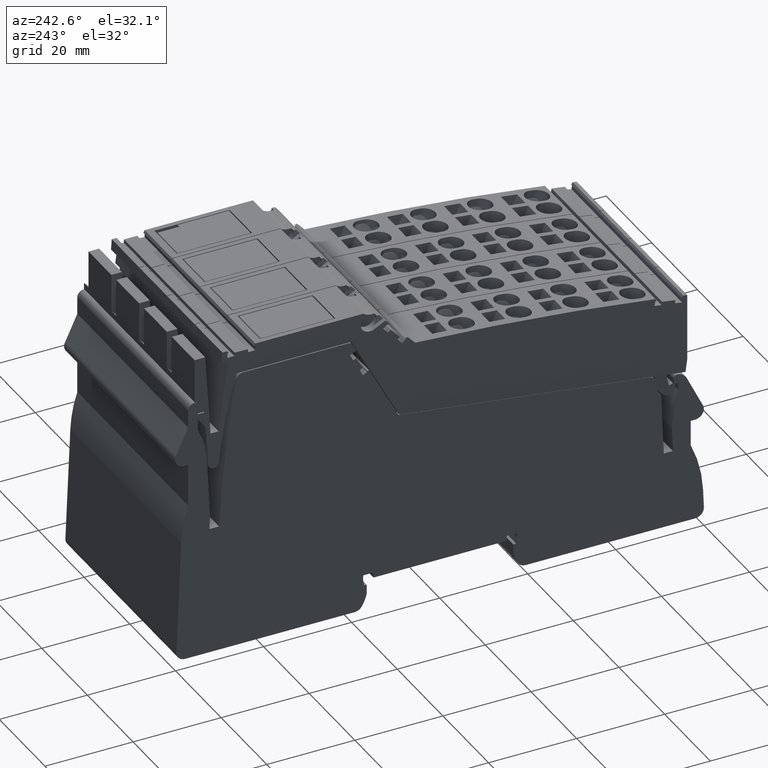
[diagram: clean part render]
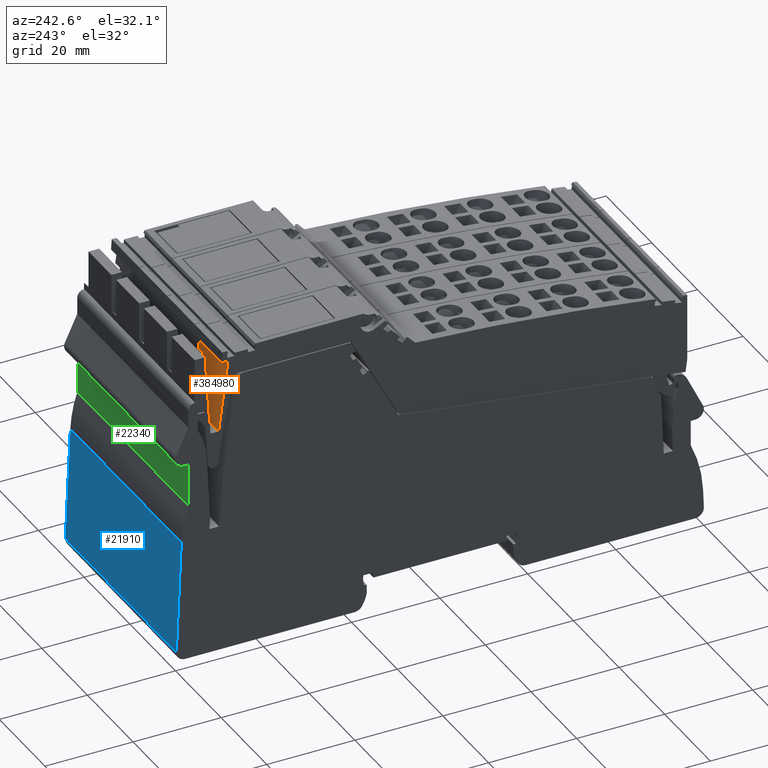
[diagram: same view with three faces highlighted in distinct colors, each labeled with its STEP entity id]
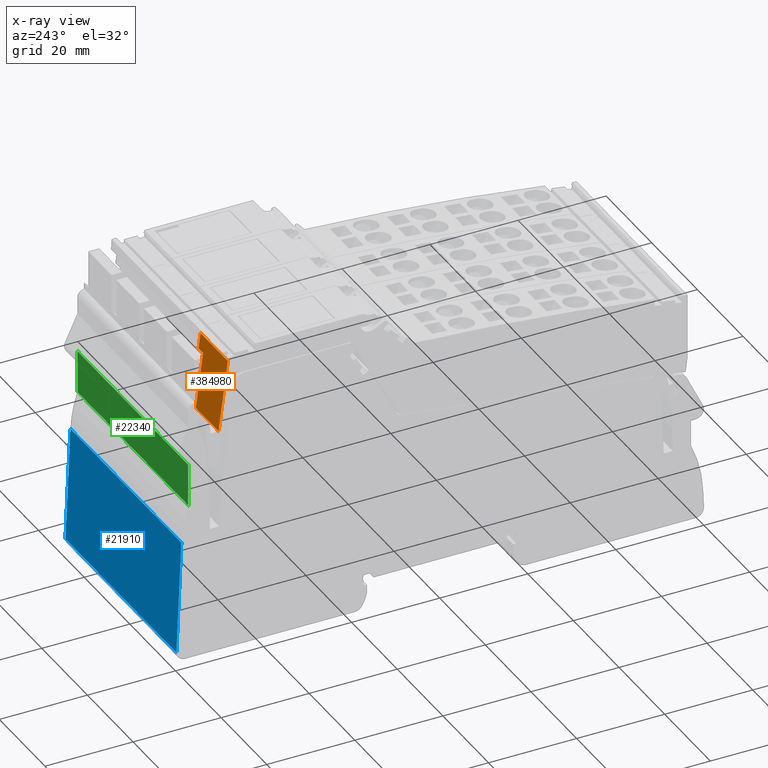
[diagram: x-ray of the same camera — body ghosted, the three highlighted faces saturated]
A machine part, auxiliary view with three faces highlighted in distinct colors.
The next image is the same camera in x-ray (body ghosted, the three faces saturated) — at least one of them is partly hidden behind the body in this view.
Their STEP definitions:

[orange] entity #384980 — the highlighted planar face has unit normal (-0, -0.9914, -0.1305).
#224320=CARTESIAN_POINT('',(117.512908656979,82.0866197234256,-35.425));
#224330=VERTEX_POINT('',#224320);
#224360=CARTESIAN_POINT('',(128.319817162075,-2.8421709430404E-14,
-35.425));
#224370=DIRECTION('',(0.130526192220052,-0.99144486137381,0.));
#224380=VECTOR('',#224370,1.);
#224390=LINE('',#224360,#224380);
#224400=CARTESIAN_POINT('',(117.973692398535,78.5866197234246,-35.425));
#224410=VERTEX_POINT('',#224400);
#224420=EDGE_CURVE('',#224330,#224410,#224390,.T.);
#230610=CARTESIAN_POINT('',(119.632513868136,65.9866197234248,-47.425));
#230620=VERTEX_POINT('',#230610);
#230650=CARTESIAN_POINT('',(128.319817162075,-2.8421709430404E-14,
-47.425));
#230660=DIRECTION('',(0.130526192220052,-0.99144486137381,0.));
#230670=VECTOR('',#230660,1.);
#230680=LINE('',#230650,#230670);
#230690=CARTESIAN_POINT('',(117.512908656979,82.0866197234256,-47.425));
#230700=VERTEX_POINT('',#230690);
#230710=EDGE_CURVE('',#230700,#230620,#230680,.T.);
#236220=CARTESIAN_POINT('',(117.512908656979,82.0866197234256,0.));
#236230=DIRECTION('',(-8.85927774418128E-33,0.,1.));
#236240=VECTOR('',#236230,1.);
#236250=LINE('',#236220,#236240);
#236260=EDGE_CURVE('',#230700,#224330,#236250,.T.);
#236490=CARTESIAN_POINT('',(119.632513868136,65.9866197234249,-37.425));
#236500=VERTEX_POINT('',#236490);
#236550=CARTESIAN_POINT('',(119.632513868136,65.9866197234248,0.));
#236560=DIRECTION('',(-8.85927774418128E-33,6.90131940202395E-49,1.));
#236570=VECTOR('',#236560,1.);
#236580=LINE('',#236550,#236570);
#236590=EDGE_CURVE('',#230620,#236500,#236580,.T.);
#376730=CARTESIAN_POINT('',(117.973692398535,78.5866197234246,-37.425));
#376740=VERTEX_POINT('',#376730);
#376770=CARTESIAN_POINT('',(118.59066468609,73.900249932795,-37.425));
#376780=DIRECTION('',(-0.130526192220052,0.99144486137381,0.));
#376790=VECTOR('',#376780,1.);
#376800=LINE('',#376770,#376790);
#376810=EDGE_CURVE('',#236500,#376740,#376800,.T.);
#380340=CARTESIAN_POINT('',(117.973692398535,78.5866197234246,0.));
#380350=DIRECTION('',(8.85927774418128E-33,0.,-1.));
#380360=VECTOR('',#380350,1.);
#380370=LINE('',#380340,#380360);
#380380=EDGE_CURVE('',#224410,#376740,#380370,.T.);
#384850=CARTESIAN_POINT('',(117.512908656979,82.0866197234256,-35.425));
#384860=DIRECTION('',(-0.99144486137381,-0.130526192220052,
-8.7834853949519E-33));
#384870=DIRECTION('',(-0.130526192220052,0.99144486137381,0.));
#384880=AXIS2_PLACEMENT_3D('',#384850,#384860,#384870);
#384890=PLANE('',#384880);
#384900=ORIENTED_EDGE('',*,*,#376810,.F.);
#384910=ORIENTED_EDGE('',*,*,#380380,.T.);
#384920=ORIENTED_EDGE('',*,*,#224420,.T.);
#384930=ORIENTED_EDGE('',*,*,#236260,.T.);
#384940=ORIENTED_EDGE('',*,*,#230710,.F.);
#384950=ORIENTED_EDGE('',*,*,#236590,.F.);
#384960=EDGE_LOOP('',(#384950,#384940,#384930,#384920,#384910,#384900));
#384970=FACE_OUTER_BOUND('',#384960,.T.);
#384980=ADVANCED_FACE('',(#384970),#384890,.F.);

[blue] entity #21910 — the highlighted planar face has unit normal (0, -0.999, -0.0436).
#1290=CARTESIAN_POINT('',(295.310352033684,-35.0513494374696,36.45));
#1300=VERTEX_POINT('',#1290);
#1330=CARTESIAN_POINT('',(295.376265619679,-36.5610187575391,36.45));
#1340=DIRECTION('',(-0.0436193873653252,0.999048221581858,0.));
#1350=VECTOR('',#1340,1.);
#1360=LINE('',#1330,#1350);
#1370=CARTESIAN_POINT('',(296.437489395879,-60.8670393220634,36.45));
#1380=VERTEX_POINT('',#1370);
#1390=EDGE_CURVE('',#1380,#1300,#1360,.T.);
#9360=CARTESIAN_POINT('',(296.437489395879,-60.8670393220635,-12.15));
#9370=VERTEX_POINT('',#9360);
#9400=CARTESIAN_POINT('',(295.376265619679,-36.5610187575391,-12.15));
#9410=DIRECTION('',(-0.0436193873653252,0.999048221581858,0.));
#9420=VECTOR('',#9410,1.);
#9430=LINE('',#9400,#9420);
#9440=CARTESIAN_POINT('',(295.310352033684,-35.0513494374696,-12.15));
#9450=VERTEX_POINT('',#9440);
#9460=EDGE_CURVE('',#9370,#9450,#9430,.T.);
#21590=CARTESIAN_POINT('',(296.437489395879,-60.8670393220633,
6.14999999999999));
#21600=DIRECTION('',(0.,0.,1.));
#21610=VECTOR('',#21600,1.);
#21620=LINE('',#21590,#21610);
#21630=EDGE_CURVE('',#9370,#1380,#21620,.T.);
#21750=CARTESIAN_POINT('',(296.437489395879,-60.8670393220633,
6.14999999999999));
#21760=DIRECTION('',(-0.999048221581858,-0.0436193873653252,0.));
#21770=DIRECTION('',(0.0436193873653252,-0.999048221581858,0.));
#21780=AXIS2_PLACEMENT_3D('',#21750,#21760,#21770);
#21790=PLANE('',#21780);
#21800=ORIENTED_EDGE('',*,*,#9460,.T.);
#21810=ORIENTED_EDGE('',*,*,#21630,.F.);
#21820=ORIENTED_EDGE('',*,*,#1390,.F.);
#21830=CARTESIAN_POINT('',(295.310352033684,-35.0513494374696,
6.14999999999999));
#21840=DIRECTION('',(0.,0.,1.));
#21850=VECTOR('',#21840,1.);
#21860=LINE('',#21830,#21850);
#21870=EDGE_CURVE('',#9450,#1300,#21860,.T.);
#21880=ORIENTED_EDGE('',*,*,#21870,.T.);
#21890=EDGE_LOOP('',(#21880,#21820,#21810,#21800));
#21900=FACE_OUTER_BOUND('',#21890,.T.);
#21910=ADVANCED_FACE('',(#21900),#21790,.F.);

[green] entity #22340 — the highlighted planar face has unit normal (0, -1, 0).
#1120=CARTESIAN_POINT('',(293.72862020886,-16.9542780967939,36.45));
#1130=VERTEX_POINT('',#1120);
#1160=CARTESIAN_POINT('',(293.728620208859,-36.5610187575391,36.45));
#1170=DIRECTION('',(1.05193631583234E-14,1.,0.));
#1180=VECTOR('',#1170,1.);
#1190=LINE('',#1160,#1180);
#1200=CARTESIAN_POINT('',(293.72862020886,-26.6633289582249,36.45));
#1210=VERTEX_POINT('',#1200);
#1220=EDGE_CURVE('',#1210,#1130,#1190,.T.);
#9530=CARTESIAN_POINT('',(293.72862020886,-26.6633289582249,-12.15));
#9540=VERTEX_POINT('',#9530);
#9570=CARTESIAN_POINT('',(293.728620208859,-36.5610187575391,-12.15));
#9580=DIRECTION('',(1.05193631583234E-14,1.,0.));
#9590=VECTOR('',#9580,1.);
#9600=LINE('',#9570,#9590);
#9610=CARTESIAN_POINT('',(293.72862020886,-16.9542780967939,-12.15));
#9620=VERTEX_POINT('',#9610);
#9630=EDGE_CURVE('',#9540,#9620,#9600,.T.);
#13190=CARTESIAN_POINT('',(293.72862020886,-16.9542780967939,-12.15));
#13200=DIRECTION('',(0.,0.,1.));
#13210=VECTOR('',#13200,1.);
#13220=LINE('',#13190,#13210);
#13230=EDGE_CURVE('',#9620,#1130,#13220,.T.);
#22070=CARTESIAN_POINT('',(293.72862020886,-26.6633289582249,
6.14999999999999));
#22080=DIRECTION('',(0.,0.,1.));
#22090=VECTOR('',#22080,1.);
#22100=LINE('',#22070,#22090);
#22110=EDGE_CURVE('',#9540,#1210,#22100,.T.);
#22230=CARTESIAN_POINT('',(293.72862020886,-26.3366964009364,
6.14999999999999));
#22240=DIRECTION('',(-1.,1.05193631583234E-14,0.));
#22250=DIRECTION('',(-1.05193631583234E-14,-1.,0.));
#22260=AXIS2_PLACEMENT_3D('',#22230,#22240,#22250);
#22270=PLANE('',#22260);
#22280=ORIENTED_EDGE('',*,*,#9630,.T.);
#22290=ORIENTED_EDGE('',*,*,#22110,.F.);
#22300=ORIENTED_EDGE('',*,*,#1220,.F.);
#22310=ORIENTED_EDGE('',*,*,#13230,.T.);
#22320=EDGE_LOOP('',(#22310,#22300,#22290,#22280));
#22330=FACE_OUTER_BOUND('',#22320,.T.);
#22340=ADVANCED_FACE('',(#22330),#22270,.F.);